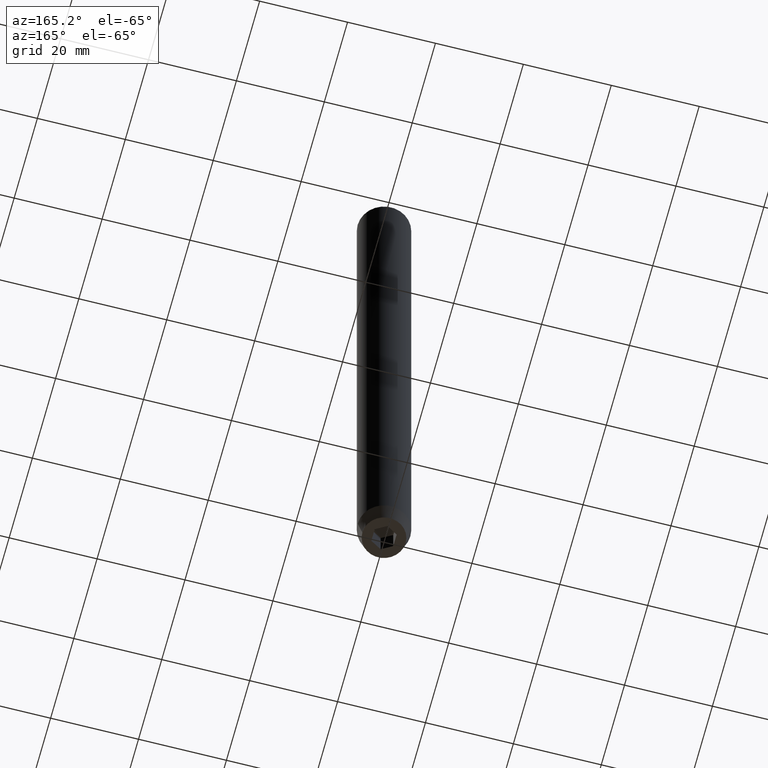
[diagram: clean part render]
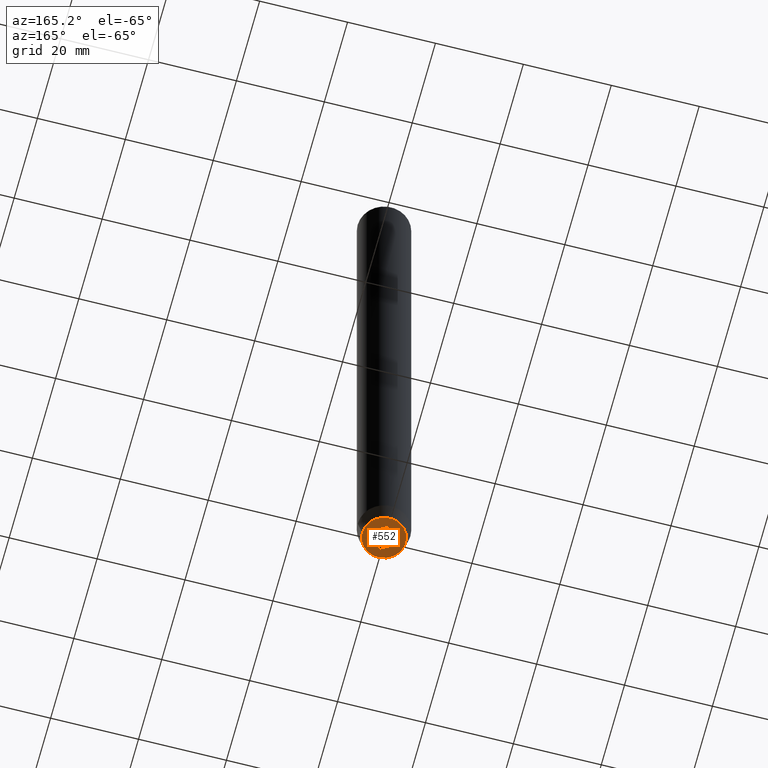
[diagram: same view with one face highlighted and labeled with its STEP entity id]
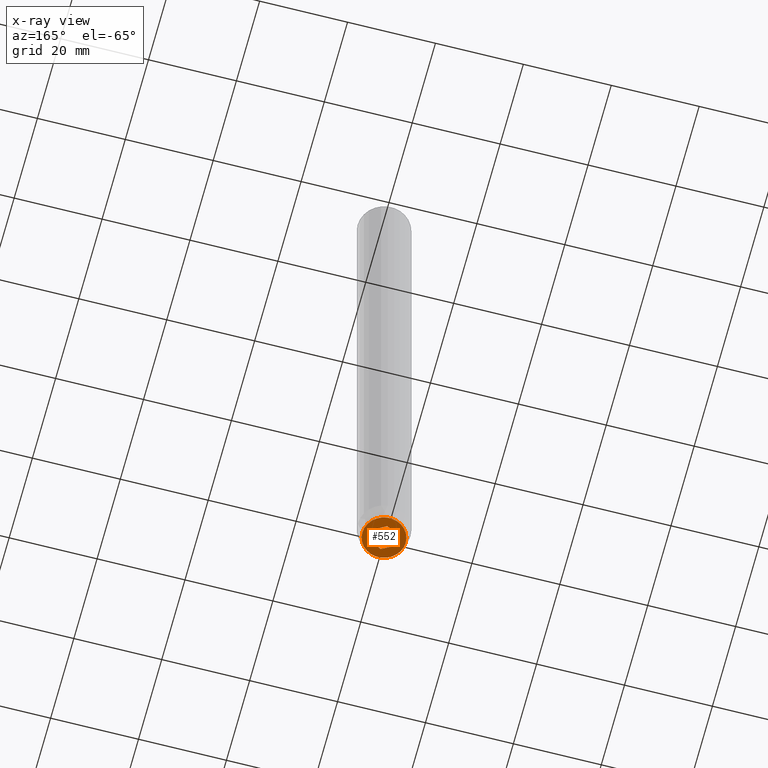
[diagram: x-ray of the same camera — body ghosted, the highlighted face saturated]
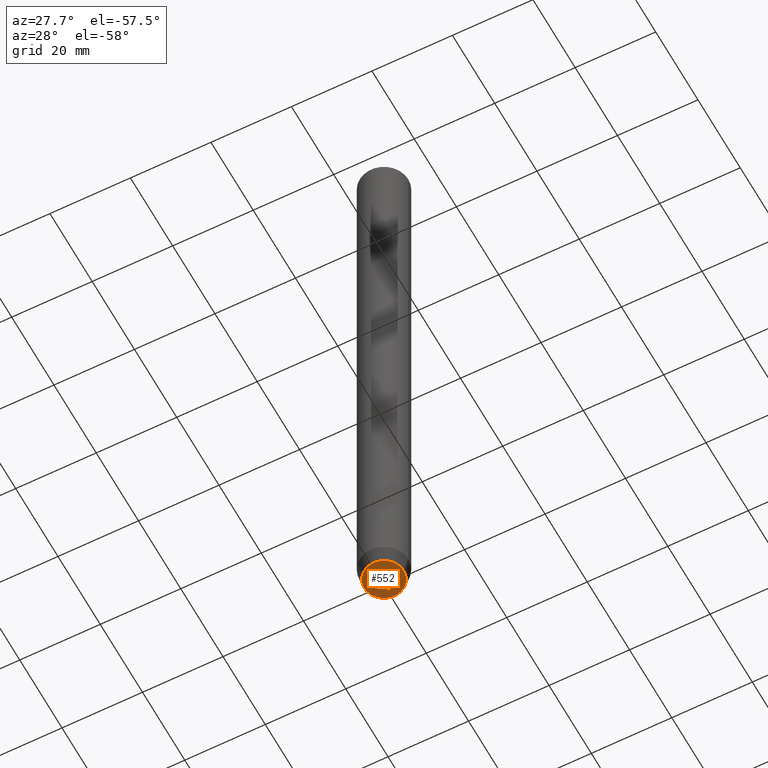
[diagram: same view with one face highlighted and labeled with its STEP entity id]
A machine part, auxiliary view. The second image highlights one B-rep face of the part: STEP entity #552.
The next image is the same camera in x-ray: the body ghosted, the highlighted face saturated — about 0% of this face is hidden behind the body in this view.
A second angle (auxiliary view) of the same face is appended — the face is thin or edge-on in the first view.
In plain terms, the highlighted planar face has unit normal (0, 0, -1).
Its self-contained STEP definition (entity closure, byte-faithful):
#2 = EDGE_CURVE ( 'NONE', #426, #638, #196, .T. ) ;
#4 = LINE ( 'NONE', #199, #403 ) ;
#16 = CARTESIAN_POINT ( 'NONE',  ( 1.249999999999999778, -2.165063509461096380, -160.0000000000000284 ) ) ;
#17 = ORIENTED_EDGE ( 'NONE', *, *, #174, .F. ) ;
#21 = VERTEX_POINT ( 'NONE', #237 ) ;
#25 = AXIS2_PLACEMENT_3D ( 'NONE', #57, #105, #459 ) ;
#26 = VERTEX_POINT ( 'NONE', #276 ) ;
#38 = CIRCLE ( 'NONE', #438, 4.928203230275505220 ) ;
#45 = LINE ( 'NONE', #391, #153 ) ;
#50 = EDGE_CURVE ( 'NONE', #521, #271, #38, .T. ) ;
#57 = CARTESIAN_POINT ( 'NONE',  ( 0.000000000000000000, 0.000000000000000000, -160.0000000000000000 ) ) ;
#58 = DIRECTION ( 'NONE',  ( 0.000000000000000000, -1.000000000000000000, 0.000000000000000000 ) ) ;
#59 = EDGE_CURVE ( 'NONE', #271, #521, #463, .T. ) ;
#88 = ORIENTED_EDGE ( 'NONE', *, *, #208, .F. ) ;
#99 = ORIENTED_EDGE ( 'NONE', *, *, #2, .F. ) ;
#105 = DIRECTION ( 'NONE',  ( -0.000000000000000000, -0.000000000000000000, 1.000000000000000000 ) ) ;
#126 = LINE ( 'NONE', #16, #628 ) ;
#133 = EDGE_LOOP ( 'NONE', ( #339, #497, #17, #88, #583, #99 ) ) ;
#146 = EDGE_CURVE ( 'NONE', #638, #267, #301, .T. ) ;
#153 = VECTOR ( 'NONE', #332, 1000.000000000000227 ) ;
#155 = CARTESIAN_POINT ( 'NONE',  ( 2.499999999999999556, 0.000000000000000000, -160.0000000000000284 ) ) ;
#162 = EDGE_CURVE ( 'NONE', #212, #26, #4, .T. ) ;
#174 = EDGE_CURVE ( 'NONE', #21, #212, #502, .T. ) ;
#196 = LINE ( 'NONE', #635, #334 ) ;
#199 = CARTESIAN_POINT ( 'NONE',  ( -2.500000000000000000, 7.511572993685795156E-16, -160.0000000000000284 ) ) ;
#208 = EDGE_CURVE ( 'NONE', #267, #21, #126, .T. ) ;
#212 = VERTEX_POINT ( 'NONE', #473 ) ;
#229 = VECTOR ( 'NONE', #604, 1000.000000000000114 ) ;
#237 = CARTESIAN_POINT ( 'NONE',  ( 6.505213034913026604E-16, -2.886751345948127767, -160.0000000000000284 ) ) ;
#267 = VERTEX_POINT ( 'NONE', #518 ) ;
#271 = VERTEX_POINT ( 'NONE', #371 ) ;
#276 = CARTESIAN_POINT ( 'NONE',  ( -2.499999999999999556, 1.443375672974064994, -160.0000000000000284 ) ) ;
#288 = CARTESIAN_POINT ( 'NONE',  ( 0.000000000000000000, 2.886751345948129543, -160.0000000000000284 ) ) ;
#295 = CARTESIAN_POINT ( 'NONE',  ( 0.000000000000000000, 4.928203230275505220, -160.0000000000000284 ) ) ;
#296 = DIRECTION ( 'NONE',  ( 3.004629197474318063E-16, 1.000000000000000000, 0.000000000000000000 ) ) ;
#301 = LINE ( 'NONE', #155, #312 ) ;
#307 = CARTESIAN_POINT ( 'NONE',  ( 0.000000000000000000, 0.000000000000000000, -160.0000000000000000 ) ) ;
#312 = VECTOR ( 'NONE', #58, 1000.000000000000000 ) ;
#320 = DIRECTION ( 'NONE',  ( -0.8660254037844387076, -0.5000000000000001110, 0.000000000000000000 ) ) ;
#332 = DIRECTION ( 'NONE',  ( 0.8660254037844385966, 0.4999999999999998890, 0.000000000000000000 ) ) ;
#334 = VECTOR ( 'NONE', #395, 1000.000000000000114 ) ;
#339 = ORIENTED_EDGE ( 'NONE', *, *, #344, .F. ) ;
#344 = EDGE_CURVE ( 'NONE', #26, #426, #45, .T. ) ;
#354 = DIRECTION ( 'NONE',  ( 0.000000000000000000, 0.000000000000000000, -1.000000000000000000 ) ) ;
#363 = DIRECTION ( 'NONE',  ( -0.000000000000000000, -0.000000000000000000, 1.000000000000000000 ) ) ;
#371 = CARTESIAN_POINT ( 'NONE',  ( 4.928203230275505220, 0.000000000000000000, -160.0000000000000000 ) ) ;
#391 = CARTESIAN_POINT ( 'NONE',  ( -1.250000000000000000, 2.165063509461097269, -160.0000000000000284 ) ) ;
#395 = DIRECTION ( 'NONE',  ( 0.8660254037844385966, -0.4999999999999999445, 0.000000000000000000 ) ) ;
#403 = VECTOR ( 'NONE', #296, 1000.000000000000000 ) ;
#406 = PLANE ( 'NONE',  #427 ) ;
#408 = CARTESIAN_POINT ( 'NONE',  ( -1.249999999999999334, -2.165063509461096825, -160.0000000000000284 ) ) ;
#426 = VERTEX_POINT ( 'NONE', #288 ) ;
#427 = AXIS2_PLACEMENT_3D ( 'NONE', #295, #354, #501 ) ;
#435 = EDGE_LOOP ( 'NONE', ( #480, #469 ) ) ;
#438 = AXIS2_PLACEMENT_3D ( 'NONE', #307, #363, #505 ) ;
#458 = CARTESIAN_POINT ( 'NONE',  ( -4.928203230275505220, 6.691594553194331608E-16, -160.0000000000000000 ) ) ;
#459 = DIRECTION ( 'NONE',  ( 1.000000000000000000, 0.000000000000000000, 0.000000000000000000 ) ) ;
#463 = CIRCLE ( 'NONE', #25, 4.928203230275505220 ) ;
#469 = ORIENTED_EDGE ( 'NONE', *, *, #50, .F. ) ;
#473 = CARTESIAN_POINT ( 'NONE',  ( -2.500000000000000444, -1.443375672974064106, -160.0000000000000284 ) ) ;
#480 = ORIENTED_EDGE ( 'NONE', *, *, #59, .F. ) ;
#497 = ORIENTED_EDGE ( 'NONE', *, *, #162, .F. ) ;
#501 = DIRECTION ( 'NONE',  ( -1.000000000000000000, 0.000000000000000000, -0.000000000000000000 ) ) ;
#502 = LINE ( 'NONE', #408, #229 ) ;
#504 = CARTESIAN_POINT ( 'NONE',  ( 2.499999999999999556, 1.443375672974065216, -160.0000000000000284 ) ) ;
#505 = DIRECTION ( 'NONE',  ( 1.000000000000000000, 0.000000000000000000, 0.000000000000000000 ) ) ;
#511 = FACE_OUTER_BOUND ( 'NONE', #435, .T. ) ;
#518 = CARTESIAN_POINT ( 'NONE',  ( 2.499999999999999556, -1.443375672974064550, -160.0000000000000284 ) ) ;
#521 = VERTEX_POINT ( 'NONE', #458 ) ;
#552 = ADVANCED_FACE ( 'NONE', ( #556, #511 ), #406, .T. ) ;
#556 = FACE_BOUND ( 'NONE', #133, .T. ) ;
#583 = ORIENTED_EDGE ( 'NONE', *, *, #146, .F. ) ;
#604 = DIRECTION ( 'NONE',  ( -0.8660254037844387076, 0.4999999999999997780, 0.000000000000000000 ) ) ;
#628 = VECTOR ( 'NONE', #320, 999.9999999999998863 ) ;
#635 = CARTESIAN_POINT ( 'NONE',  ( 1.250000000000000222, 2.165063509461097269, -160.0000000000000284 ) ) ;
#638 = VERTEX_POINT ( 'NONE', #504 ) ;